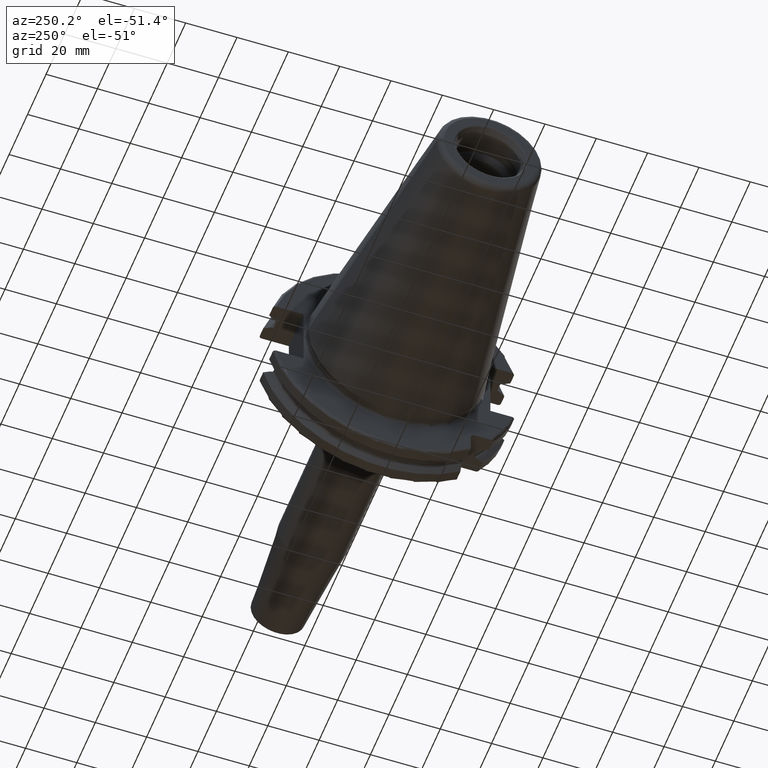
[diagram: clean part render]
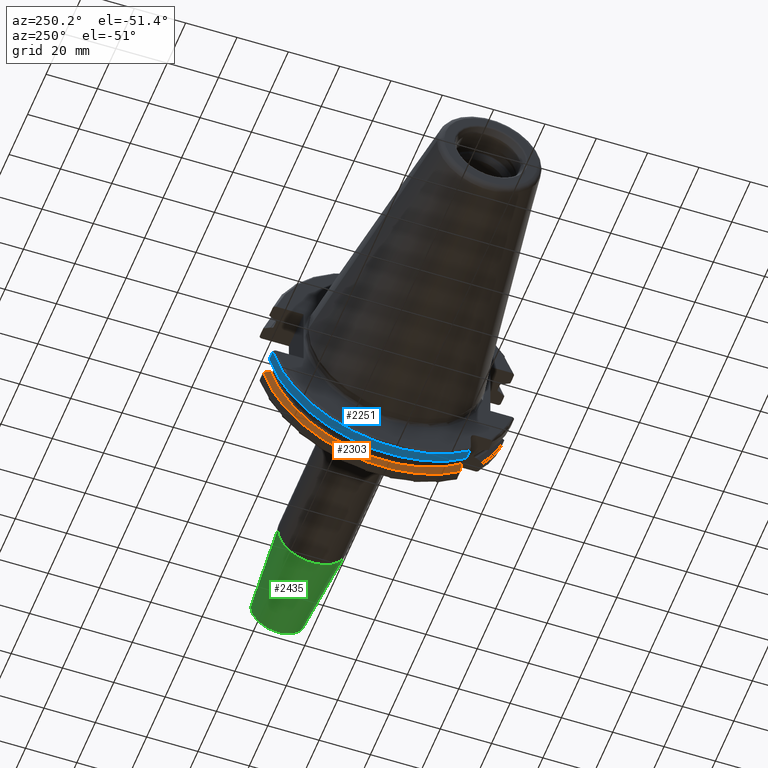
[diagram: same view with three faces highlighted in distinct colors, each labeled with its STEP entity id]
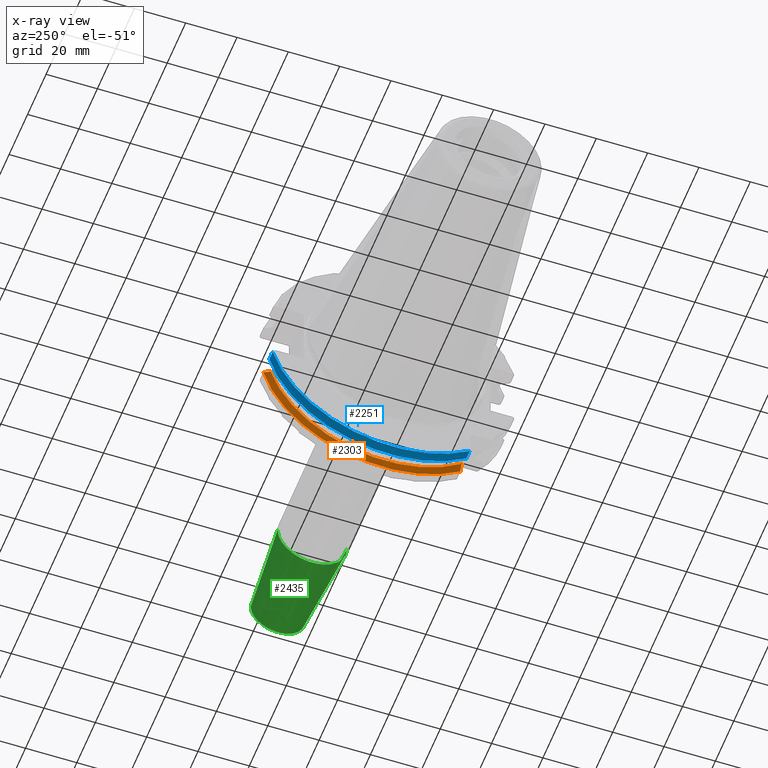
[diagram: x-ray of the same camera — body ghosted, the three highlighted faces saturated]
A machine part, auxiliary view with three faces highlighted in distinct colors.
The next image is the same camera in x-ray (body ghosted, the three faces saturated) — at least one of them is partly hidden behind the body in this view.
Their STEP definitions:

[orange] entity #2303 — the highlighted conical surface has half-angle 60 deg.
#740=CARTESIAN_POINT('',(1.441537838583E1,0.E0,0.E0));
#741=DIRECTION('',(1.E0,0.E0,0.E0));
#742=DIRECTION('',(0.E0,-6.124647345473E-1,-7.904979120376E-1));
#743=AXIS2_PLACEMENT_3D('',#740,#741,#742);
#785=CARTESIAN_POINT('',(1.30875E1,4.460981716077E1,-1.29E1));
#786=CARTESIAN_POINT('',(1.323171622645E1,4.486984125009E1,-1.29E1));
#787=CARTESIAN_POINT('',(1.352236645045E1,4.539353719098E1,-1.29E1));
#788=CARTESIAN_POINT('',(1.396495664446E1,4.618996220278E1,-1.29E1));
#789=CARTESIAN_POINT('',(1.426449561388E1,4.672829507383E1,-1.29E1));
#790=CARTESIAN_POINT('',(1.441537838583E1,4.699929686974E1,-1.29E1));
#792=CARTESIAN_POINT('',(1.30875E1,0.E0,0.E0));
#793=DIRECTION('',(-1.E0,0.E0,0.E0));
#794=DIRECTION('',(0.E0,9.606411165078E-1,-2.777924499957E-1));
#795=AXIS2_PLACEMENT_3D('',#792,#793,#794);
#797=CARTESIAN_POINT('',(1.30875E1,-2.985E1,-3.557278857662E1));
#798=CARTESIAN_POINT('',(1.322720354061E1,-2.985E1,-3.588866659244E1));
#799=CARTESIAN_POINT('',(1.351179500938E1,-2.985E1,-3.652866450573E1));
#800=CARTESIAN_POINT('',(1.395393296765E1,-2.985E1,-3.751242476101E1));
#801=CARTESIAN_POINT('',(1.425975326859E1,-2.985E1,-3.818590359837E1));
#802=CARTESIAN_POINT('',(1.441537838583E1,-2.985E1,-3.852689198793E1));
#1304=CARTESIAN_POINT('',(1.30875E1,4.460981716077E1,-1.29E1));
#1306=VERTEX_POINT('',#1304);
#1324=VERTEX_POINT('',#790);
#1391=CARTESIAN_POINT('',(1.30875E1,-2.985E1,-3.557278857662E1));
#1392=VERTEX_POINT('',#1391);
#1424=VERTEX_POINT('',#802);
#2292=CARTESIAN_POINT('',(1.375143919291E1,0.E0,0.E0));
#2293=DIRECTION('',(1.E0,0.E0,0.E0));
#2294=DIRECTION('',(0.E0,-1.E0,0.E0));
#2295=AXIS2_PLACEMENT_3D('',#2292,#2293,#2294);
#2296=CONICAL_SURFACE('',#2295,4.758752358474E1,6.E1);
#2297=ORIENTED_EDGE('',*,*,#1823,.F.);
#2298=ORIENTED_EDGE('',*,*,#2024,.T.);
#2299=ORIENTED_EDGE('',*,*,#1677,.T.);
#2300=ORIENTED_EDGE('',*,*,#2258,.T.);
#2301=EDGE_LOOP('',(#2297,#2298,#2299,#2300));
#2302=FACE_OUTER_BOUND('',#2301,.F.);
#2303=ADVANCED_FACE('',(#2302),#2296,.T.);
#744=CIRCLE('',#743,4.87375E1);
#791=B_SPLINE_CURVE_WITH_KNOTS('',3,(#785,#786,#787,#788,#789,#790),
.UNSPECIFIED.,.F.,.F.,(4,1,1,4),(0.E0,3.333333333333E-1,6.666666666667E-1,1.E0),
.UNSPECIFIED.);
#796=CIRCLE('',#795,4.643754716948E1);
#803=B_SPLINE_CURVE_WITH_KNOTS('',3,(#797,#798,#799,#800,#801,#802),
.UNSPECIFIED.,.F.,.F.,(4,1,1,4),(0.E0,3.333333333333E-1,6.666666666667E-1,1.E0),
.UNSPECIFIED.);
#1677=EDGE_CURVE('',#1392,#1424,#803,.T.);
#1823=EDGE_CURVE('',#1306,#1324,#791,.T.);
#2024=EDGE_CURVE('',#1306,#1392,#796,.T.);
#2258=EDGE_CURVE('',#1424,#1324,#744,.T.);

[blue] entity #2251 — the highlighted cylindrical surface (partial cylindrical patch) has radius 48.7375 mm, axis along (1, 0, 0).
#258=CARTESIAN_POINT('',(4.2E0,0.E0,0.E0));
#259=DIRECTION('',(-1.E0,0.E0,0.E0));
#260=DIRECTION('',(0.E0,9.643354064066E-1,-2.646832521159E-1));
#261=AXIS2_PLACEMENT_3D('',#258,#259,#260);
#700=CARTESIAN_POINT('',(7.934621614173E0,4.699929686974E1,-1.29E1));
#707=CARTESIAN_POINT('',(7.934621614173E0,-2.985E1,-3.852689198793E1));
#723=DIRECTION('',(1.E0,0.E0,0.E0));
#724=VECTOR('',#723,3.734621614173E0);
#725=CARTESIAN_POINT('',(4.2E0,4.699929686974E1,-1.29E1));
#726=LINE('',#725,#724);
#727=DIRECTION('',(1.E0,0.E0,0.E0));
#728=VECTOR('',#727,3.734621614173E0);
#729=CARTESIAN_POINT('',(4.2E0,-2.985E1,-3.852689198793E1));
#730=LINE('',#729,#728);
#731=CARTESIAN_POINT('',(7.934621614173E0,0.E0,0.E0));
#732=DIRECTION('',(1.E0,0.E0,0.E0));
#733=DIRECTION('',(0.E0,-6.124647345473E-1,-7.904979120376E-1));
#734=AXIS2_PLACEMENT_3D('',#731,#732,#733);
#1326=VERTEX_POINT('',#700);
#1372=CARTESIAN_POINT('',(4.2E0,4.699929686974E1,-1.29E1));
#1373=VERTEX_POINT('',#1372);
#1401=CARTESIAN_POINT('',(4.2E0,-2.985E1,-3.852689198793E1));
#1402=VERTEX_POINT('',#1401);
#1425=VERTEX_POINT('',#707);
#2240=CARTESIAN_POINT('',(-1.076325E2,0.E0,0.E0));
#2241=DIRECTION('',(1.E0,0.E0,0.E0));
#2242=DIRECTION('',(0.E0,-1.E0,0.E0));
#2243=AXIS2_PLACEMENT_3D('',#2240,#2241,#2242);
#2244=CYLINDRICAL_SURFACE('',#2243,4.87375E1);
#2245=ORIENTED_EDGE('',*,*,#1833,.F.);
#2246=ORIENTED_EDGE('',*,*,#1789,.T.);
#2247=ORIENTED_EDGE('',*,*,#1691,.T.);
#2248=ORIENTED_EDGE('',*,*,#2220,.T.);
#2249=EDGE_LOOP('',(#2245,#2246,#2247,#2248));
#2250=FACE_OUTER_BOUND('',#2249,.F.);
#2251=ADVANCED_FACE('',(#2250),#2244,.T.);
#262=CIRCLE('',#261,4.87375E1);
#735=CIRCLE('',#734,4.87375E1);
#1691=EDGE_CURVE('',#1402,#1425,#730,.T.);
#1789=EDGE_CURVE('',#1373,#1402,#262,.T.);
#1833=EDGE_CURVE('',#1373,#1326,#726,.T.);
#2220=EDGE_CURVE('',#1425,#1326,#735,.T.);

[green] entity #2435 — the highlighted conical surface has half-angle 4.5 deg.
#925=CARTESIAN_POINT('',(9.188138579148E1,0.E0,0.E0));
#926=DIRECTION('',(-1.E0,0.E0,0.E0));
#927=DIRECTION('',(0.E0,1.E0,0.E0));
#928=AXIS2_PLACEMENT_3D('',#925,#926,#927);
#934=CARTESIAN_POINT('',(1.290784590957E2,0.E0,0.E0));
#935=DIRECTION('',(-1.E0,0.E0,0.E0));
#936=DIRECTION('',(0.E0,1.E0,0.E0));
#937=AXIS2_PLACEMENT_3D('',#934,#935,#936);
#939=DIRECTION('',(-9.969173337331E-1,7.845909572785E-2,1.680001370298E-13));
#940=VECTOR('',#939,3.731209403789E1);
#941=CARTESIAN_POINT('',(1.290784590957E2,1.057252684207E1,
-6.266783638056E-12));
#942=LINE('',#941,#940);
#943=DIRECTION('',(-9.969173337331E-1,-7.845909572785E-2,-1.679914618191E-13));
#944=VECTOR('',#943,3.731209403789E1);
#945=CARTESIAN_POINT('',(1.290784590957E2,-1.057252684207E1,
6.266459947777E-12));
#946=LINE('',#945,#944);
#1432=CARTESIAN_POINT('',(9.188138579148E1,1.35E1,0.E0));
#1433=CARTESIAN_POINT('',(9.188138579148E1,-1.35E1,0.E0));
#1434=VERTEX_POINT('',#1432);
#1435=VERTEX_POINT('',#1433);
#1436=CARTESIAN_POINT('',(1.290784590957E2,1.057252684207E1,0.E0));
#1437=CARTESIAN_POINT('',(1.290784590957E2,-1.057252684207E1,0.E0));
#1438=VERTEX_POINT('',#1436);
#1439=VERTEX_POINT('',#1437);
#2421=CARTESIAN_POINT('',(1.104799224436E2,0.E0,0.E0));
#2422=DIRECTION('',(-1.E0,0.E0,0.E0));
#2423=DIRECTION('',(0.E0,1.E0,0.E0));
#2424=AXIS2_PLACEMENT_3D('',#2421,#2422,#2423);
#2425=CONICAL_SURFACE('',#2424,1.203626342104E1,4.5E0);
#2427=ORIENTED_EDGE('',*,*,#2426,.F.);
#2429=ORIENTED_EDGE('',*,*,#2428,.T.);
#2430=ORIENTED_EDGE('',*,*,#2415,.T.);
#2432=ORIENTED_EDGE('',*,*,#2431,.F.);
#2433=EDGE_LOOP('',(#2427,#2429,#2430,#2432));
#2434=FACE_OUTER_BOUND('',#2433,.F.);
#2435=ADVANCED_FACE('',(#2434),#2425,.T.);
#929=CIRCLE('',#928,1.35E1);
#938=CIRCLE('',#937,1.057252684207E1);
#2415=EDGE_CURVE('',#1434,#1435,#929,.T.);
#2426=EDGE_CURVE('',#1438,#1439,#938,.T.);
#2428=EDGE_CURVE('',#1438,#1434,#942,.T.);
#2431=EDGE_CURVE('',#1439,#1435,#946,.T.);